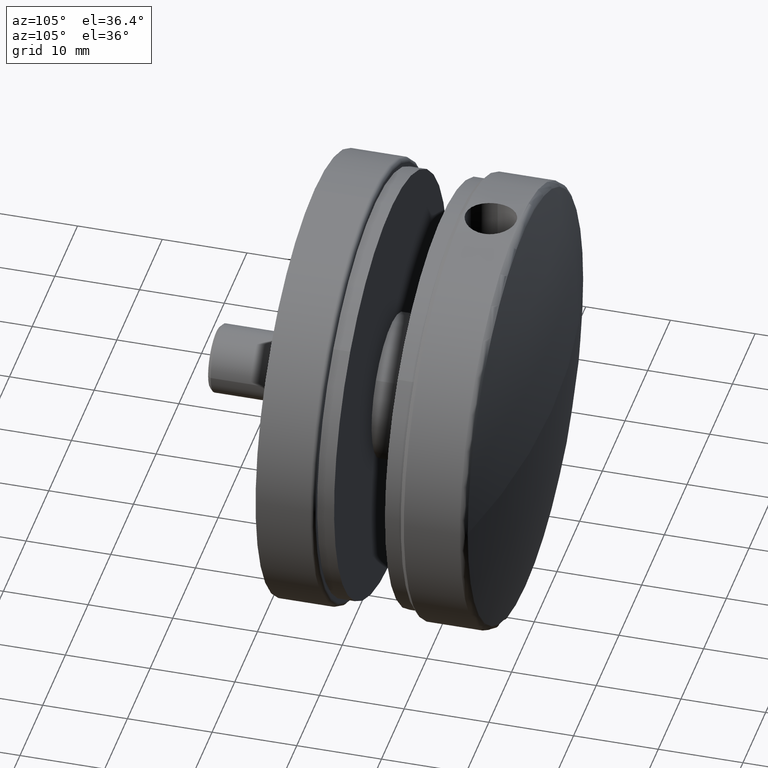
[diagram: clean part render]
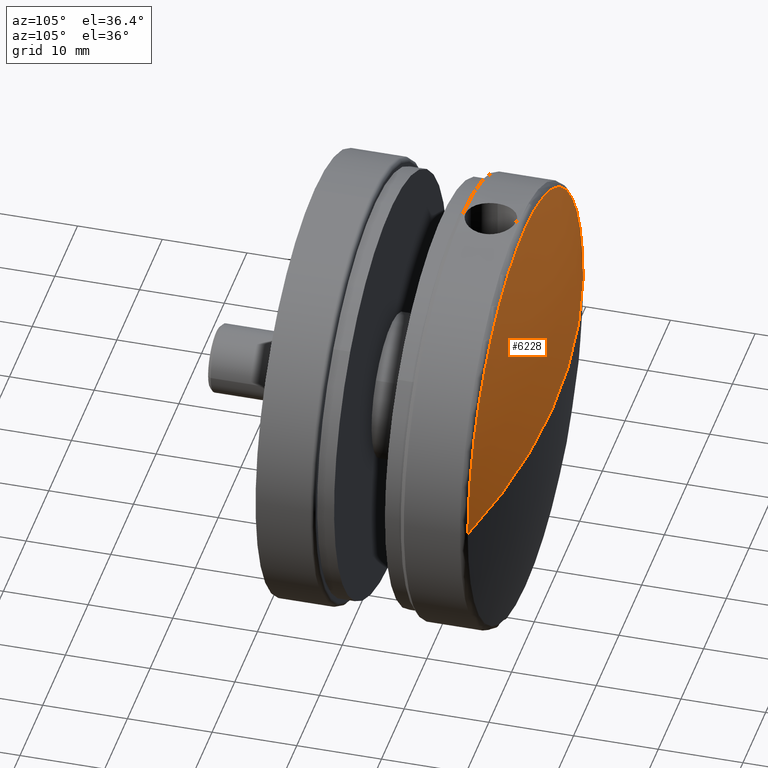
[diagram: same view with one face highlighted and labeled with its STEP entity id]
A machine part, auxiliary view. The second image highlights one B-rep face of the part: STEP entity #6228.
In plain terms, the highlighted spherical surface has radius 105.67 mm.
Its self-contained STEP definition (entity closure, byte-faithful):
#99 = VERTEX_POINT ( 'NONE', #1767 ) ;
#539 = DIRECTION ( 'NONE',  ( -1.000000000000000000, 0.0000000000000000000, 0.0000000000000000000 ) ) ;
#677 = SPHERICAL_SURFACE ( 'NONE', #3967, 105.6699999999999900 ) ;
#711 = DIRECTION ( 'NONE',  ( -1.000000000000000000, 0.0000000000000000000, 1.224646799147353200E-016 ) ) ;
#723 = CIRCLE ( 'NONE', #10245, 25.39223800896348100 ) ;
#982 = ORIENTED_EDGE ( 'NONE', *, *, #2756, .T. ) ;
#1124 = CARTESIAN_POINT ( 'NONE',  ( 26.00000000000000400, 7.903793675071546500, 25.39223800896348100 ) ) ;
#1289 = ORIENTED_EDGE ( 'NONE', *, *, #13883, .T. ) ;
#1755 = CARTESIAN_POINT ( 'NONE',  ( 26.00000000000000400, -94.67000000000000200, 0.0000000000000000000 ) ) ;
#1767 = CARTESIAN_POINT ( 'NONE',  ( 51.39223800896347400, 7.903793675071553600, -3.109652300086488700E-015 ) ) ;
#2020 = CARTESIAN_POINT ( 'NONE',  ( 26.00000000000000400, -94.67000000000000200, 0.0000000000000000000 ) ) ;
#2311 = VERTEX_POINT ( 'NONE', #7907 ) ;
#2756 = EDGE_CURVE ( 'NONE', #2311, #2898, #6833, .T. ) ;
#2898 = VERTEX_POINT ( 'NONE', #6079 ) ;
#2965 = DIRECTION ( 'NONE',  ( -1.224646799147353200E-016, 0.0000000000000000000, -1.000000000000000000 ) ) ;
#3001 = FACE_OUTER_BOUND ( 'NONE', #13916, .T. ) ;
#3106 = DIRECTION ( 'NONE',  ( 0.0000000000000000000, 0.0000000000000000000, -1.000000000000000000 ) ) ;
#3194 = DIRECTION ( 'NONE',  ( -0.0000000000000000000, 0.0000000000000000000, 1.000000000000000000 ) ) ;
#3710 = AXIS2_PLACEMENT_3D ( 'NONE', #13424, #7629, #9934 ) ;
#3776 = EDGE_CURVE ( 'NONE', #2311, #99, #14141, .T. ) ;
#3967 = AXIS2_PLACEMENT_3D ( 'NONE', #13004, #13092, #539 ) ;
#4333 = DIRECTION ( 'NONE',  ( 1.000000000000000000, 0.0000000000000000000, 0.0000000000000000000 ) ) ;
#5397 = DIRECTION ( 'NONE',  ( 0.0000000000000000000, 1.000000000000000000, 0.0000000000000000000 ) ) ;
#5459 = CARTESIAN_POINT ( 'NONE',  ( 26.00000000000000400, 7.903793675071546500, 0.0000000000000000000 ) ) ;
#5612 = ORIENTED_EDGE ( 'NONE', *, *, #10590, .T. ) ;
#6079 = CARTESIAN_POINT ( 'NONE',  ( 0.6077619910365237300, 7.903793675071553600, 0.0000000000000000000 ) ) ;
#6228 = ADVANCED_FACE ( 'NONE', ( #3001 ), #677, .T. ) ;
#6833 = CIRCLE ( 'NONE', #14710, 105.6699999999999900 ) ;
#7396 = CIRCLE ( 'NONE', #3710, 25.39223800896348100 ) ;
#7629 = DIRECTION ( 'NONE',  ( 0.0000000000000000000, 1.000000000000000000, 0.0000000000000000000 ) ) ;
#7907 = CARTESIAN_POINT ( 'NONE',  ( 25.99999999999999600, 10.99999999999998200, 0.0000000000000000000 ) ) ;
#9068 = VERTEX_POINT ( 'NONE', #1124 ) ;
#9934 = DIRECTION ( 'NONE',  ( 0.0000000000000000000, 0.0000000000000000000, -1.000000000000000000 ) ) ;
#10245 = AXIS2_PLACEMENT_3D ( 'NONE', #5459, #5397, #3106 ) ;
#10590 = EDGE_CURVE ( 'NONE', #2898, #9068, #7396, .T. ) ;
#11552 = ORIENTED_EDGE ( 'NONE', *, *, #3776, .F. ) ;
#11564 = AXIS2_PLACEMENT_3D ( 'NONE', #1755, #2965, #711 ) ;
#13004 = CARTESIAN_POINT ( 'NONE',  ( 26.00000000000000400, -94.67000000000000200, 0.0000000000000000000 ) ) ;
#13092 = DIRECTION ( 'NONE',  ( -0.0000000000000000000, -0.0000000000000000000, -1.000000000000000000 ) ) ;
#13424 = CARTESIAN_POINT ( 'NONE',  ( 26.00000000000000400, 7.903793675071546500, 0.0000000000000000000 ) ) ;
#13883 = EDGE_CURVE ( 'NONE', #9068, #99, #723, .T. ) ;
#13916 = EDGE_LOOP ( 'NONE', ( #11552, #982, #5612, #1289 ) ) ;
#14141 = CIRCLE ( 'NONE', #11564, 105.6699999999999900 ) ;
#14710 = AXIS2_PLACEMENT_3D ( 'NONE', #2020, #3194, #4333 ) ;